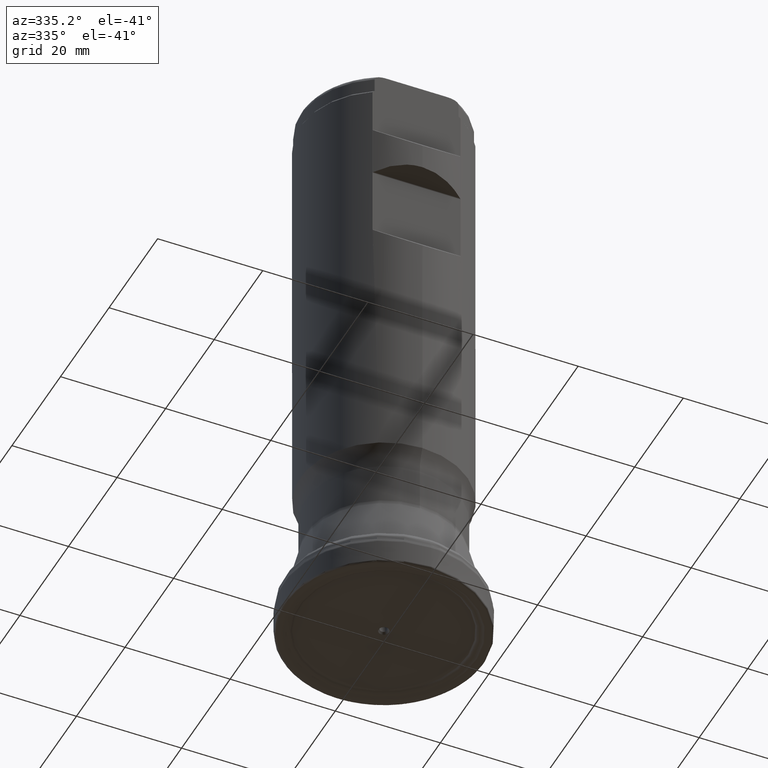
[diagram: clean part render]
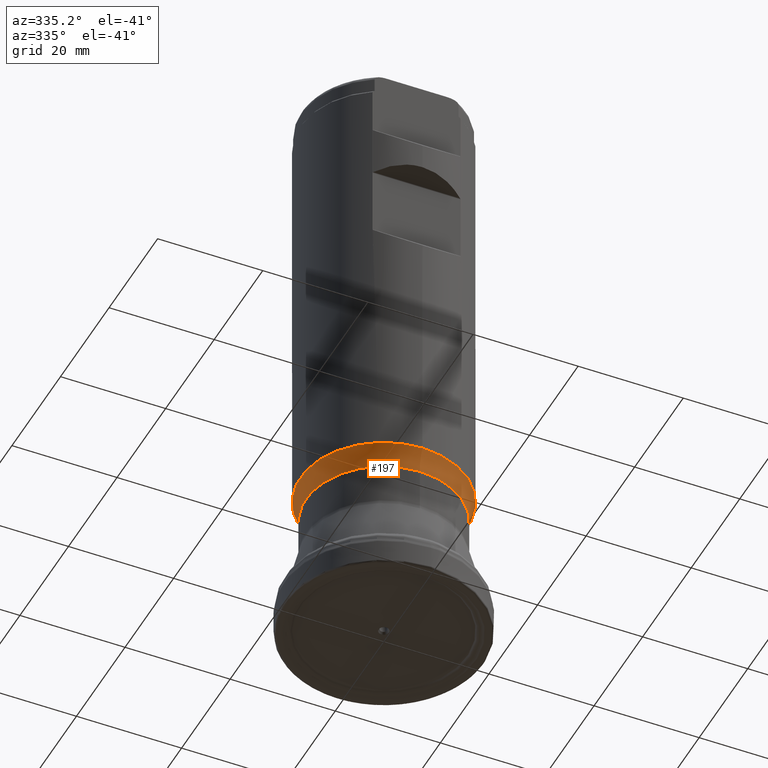
[diagram: same view with one face highlighted and labeled with its STEP entity id]
A machine part, auxiliary view. The second image highlights one B-rep face of the part: STEP entity #197.
In plain terms, the highlighted toroidal blend (fillet) surface has major radius 24.8 mm and minor (blend) radius 10 mm.
Its self-contained STEP definition (entity closure, byte-faithful):
#151=TOROIDAL_SURFACE('',#837,24.8,10.);
#197=ADVANCED_FACE('',(#304,#305),#151,.F.);
#247=CIRCLE('',#810,15.875);
#262=CIRCLE('',#835,14.8);
#304=FACE_BOUND('',#386,.T.);
#305=FACE_BOUND('',#387,.T.);
#386=EDGE_LOOP('',(#539));
#387=EDGE_LOOP('',(#540));
#539=ORIENTED_EDGE('',*,*,#730,.F.);
#540=ORIENTED_EDGE('',*,*,#703,.F.);
#643=VERTEX_POINT('',#1342);
#666=VERTEX_POINT('',#1445);
#703=EDGE_CURVE('',#643,#643,#247,.T.);
#730=EDGE_CURVE('',#666,#666,#262,.T.);
#810=AXIS2_PLACEMENT_3D('',#1341,#893,#894);
#835=AXIS2_PLACEMENT_3D('',#1444,#948,#949);
#837=AXIS2_PLACEMENT_3D('',#1447,#952,#953);
#893=DIRECTION('',(0.,1.17145536458252E-15,1.));
#894=DIRECTION('',(0.,-1.,1.09273919746571E-15));
#948=DIRECTION('',(0.,-1.17145536458252E-15,-1.));
#949=DIRECTION('',(0.,-1.,1.17211045674109E-15));
#952=DIRECTION('',(0.,1.17145536458252E-15,1.));
#953=DIRECTION('',(0.,-1.,1.19636101791504E-15));
#1341=CARTESIAN_POINT('',(0.,3.51406151535278E-14,29.9974));
#1342=CARTESIAN_POINT('',(0.,-15.875,29.9974));
#1444=CARTESIAN_POINT('',(0.,2.98567962809267E-14,25.4869260781155));
#1445=CARTESIAN_POINT('',(0.,-14.8,25.4869260781155));
#1447=CARTESIAN_POINT('',(0.,2.98567962809267E-14,25.4869260781155));